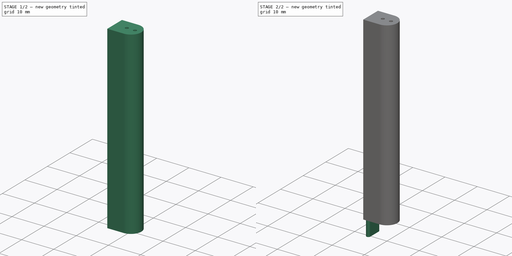
[diagram: build sequence overview — one tinted view per stage of 2, left to right]
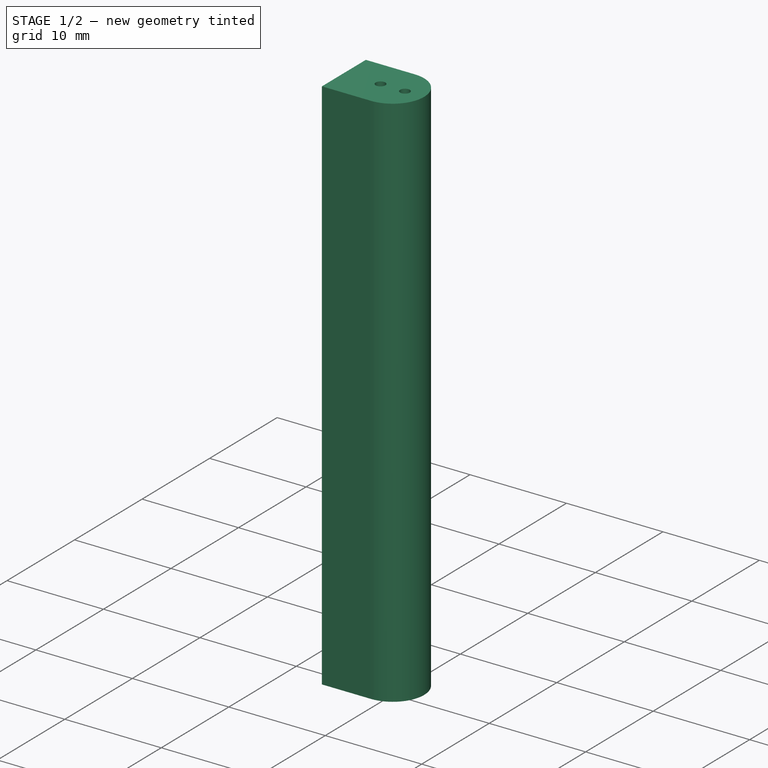
[diagram: stage 1 of 2 — iso view after this stage's code; geometry added in this stage tinted green]
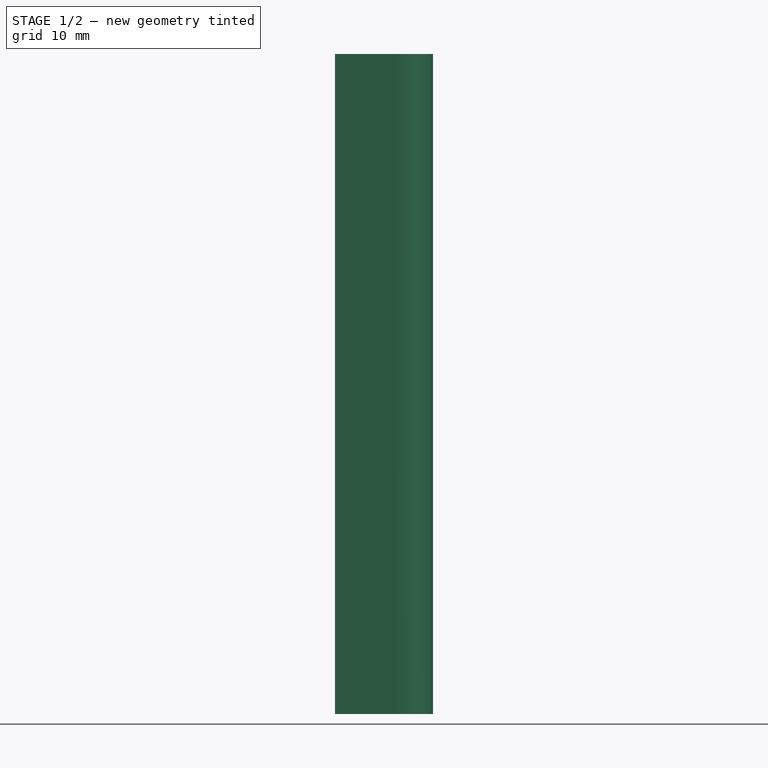
[diagram: stage 1 of 2 — front view after this stage's code; geometry added in this stage tinted green]
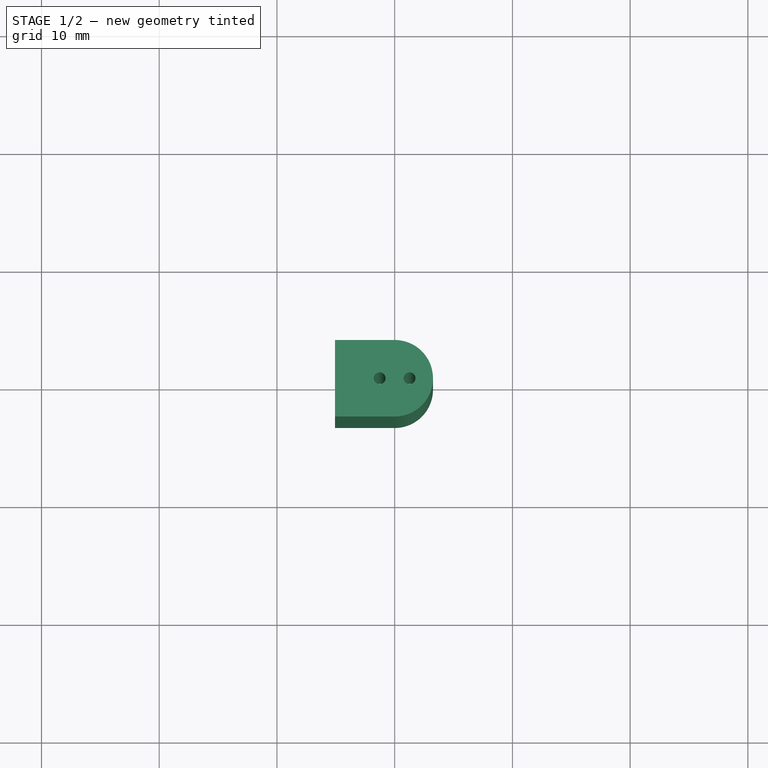
[diagram: stage 1 of 2 — top view after this stage's code; geometry added in this stage tinted green]
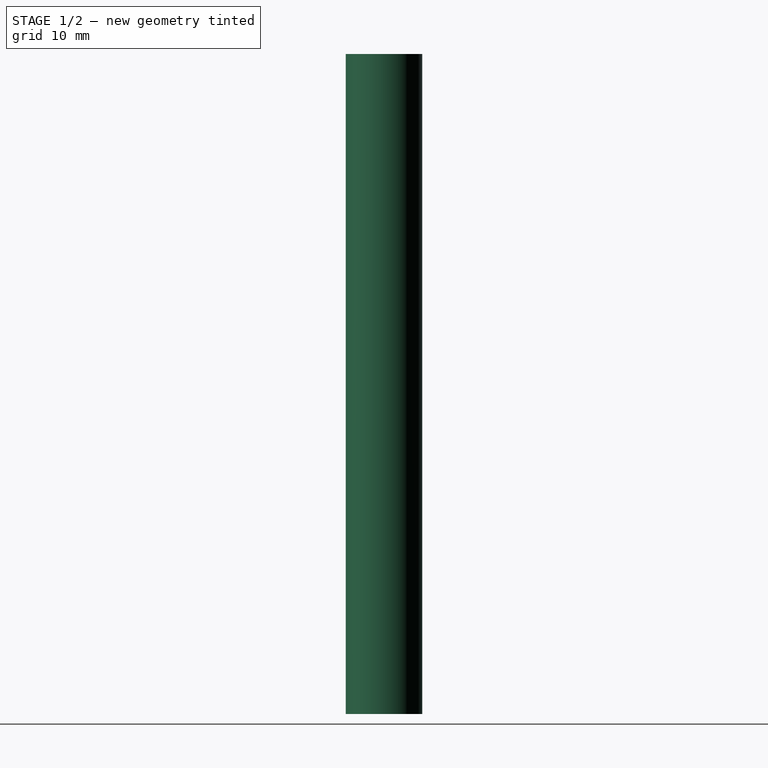
[diagram: stage 1 of 2 — right view after this stage's code; geometry added in this stage tinted green]
FCSTD DOCUMENT  (FreeCAD 0.19R24276 (Git))
Label: spacer-led
License: All rights reserved
LicenseURL: http://en.wikipedia.org/wiki/All_rights_reserved
objects: Sketcher::SketchObject×3, PartDesign::Pad×2, PartDesign::Pocket×1, PartDesign::Body×1
note: 10 computed .brp shape members not serialized (recipe doc carries the construction recipe); baked Part::Feature solids carry a one-line shape summary decoded from their .brp

FEATURE [Sketcher::SketchObject] Sketch  label="base"
  FullyConstrained = false
  MapMode = 5
  Support = -> [XY_Plane]
  sketch-geometry (4):
    g0: LineSegment StartX=-5.067 StartY=3.25 StartZ=0 EndX=-6.89379e-07 EndY=3.25 EndZ=0
    g1: LineSegment StartX=-1.68771e-06 StartY=-3.25 StartZ=0 EndX=-5.067 EndY=-3.25 EndZ=0
    g2: LineSegment StartX=-5.067 StartY=-3.25 StartZ=0 EndX=-5.067 EndY=3.25 EndZ=0
    g3: ArcOfCircle CenterX=0.003284 CenterY=0 CenterZ=0 NormalX=0 NormalY=0 NormalZ=1 AngleXU=0 Radius=3.25 StartAngle=4.71138 EndAngle=7.85499
  constraints (8):
    c: Coincident(g1,g2)
    c: Coincident(g2,g0)
    c: Horizontal(g0)
    c: Horizontal(g1)
    c: Vertical(g2)
    c: DistanceX(g0,g0) = 5.067
    c: Coincident(g3,g0)
    c: Coincident(g3,g1)
FEATURE [PartDesign::Pad] Pad  label="base_pad"
  Direction = (1,1,1)
  Length = 56.05
  Length2 = 100
  Profile = -> Sketch
  Type = 0
FEATURE [Sketcher::SketchObject] Sketch001  label="hole"
  FullyConstrained = true
  MapMode = 5
  Placement = pos=(0,0,56.05) rot=(0,0,1;0rad)
  Support = -> [Pad]
  sketch-geometry (2):
    g0: Circle CenterX=-1.27 CenterY=0 CenterZ=0 NormalX=0 NormalY=0 NormalZ=1 AngleXU=0 Radius=0.5
    g1: Circle CenterX=1.27 CenterY=0 CenterZ=0 NormalX=0 NormalY=0 NormalZ=1 AngleXU=0 Radius=0.5
  constraints (6):
    c: PointOnObject(g0,g-1)
    c: PointOnObject(g1,g-1)
    c: Radius(g1) = 0.5
    c: Radius(g0) = 0.5
    c: DistanceX(g-1,g1) = 1.27
    c: DistanceX(g0,g-1) = 1.27
FEATURE [PartDesign::Pocket] Pocket  label="hole_pocket"
  BaseFeature = -> Pad
  Length = 70
  Length2 = 100
  Profile = -> Sketch001
  Type = 0
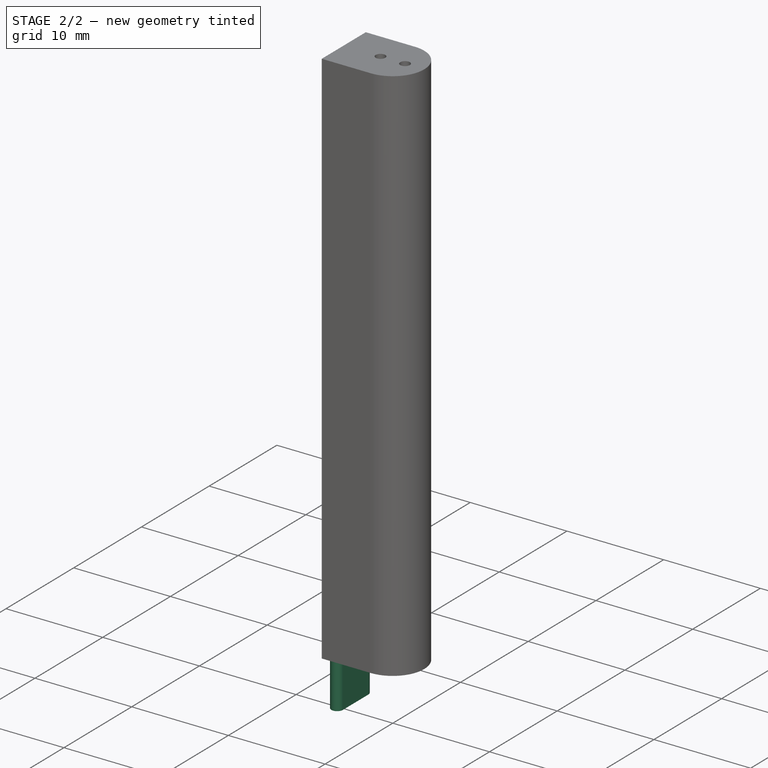
[diagram: stage 2 of 2 — iso view after this stage's code; geometry added in this stage tinted green]
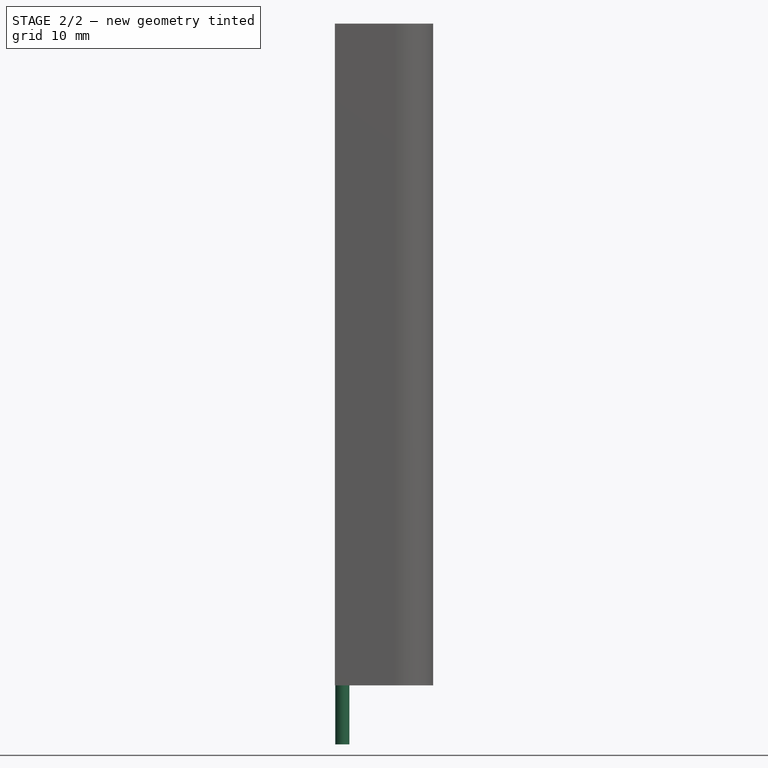
[diagram: stage 2 of 2 — front view after this stage's code; geometry added in this stage tinted green]
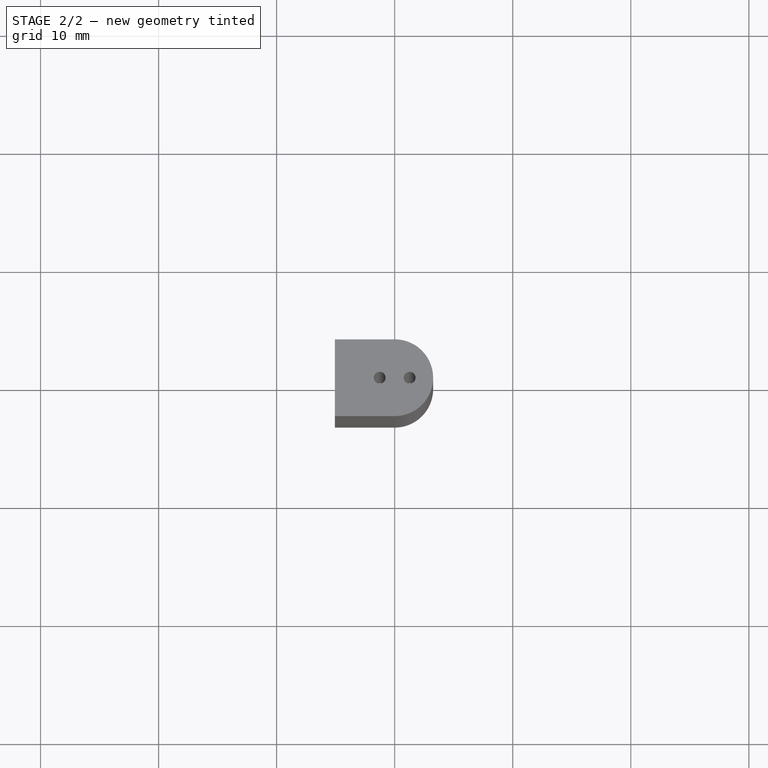
[diagram: stage 2 of 2 — top view after this stage's code; geometry added in this stage tinted green]
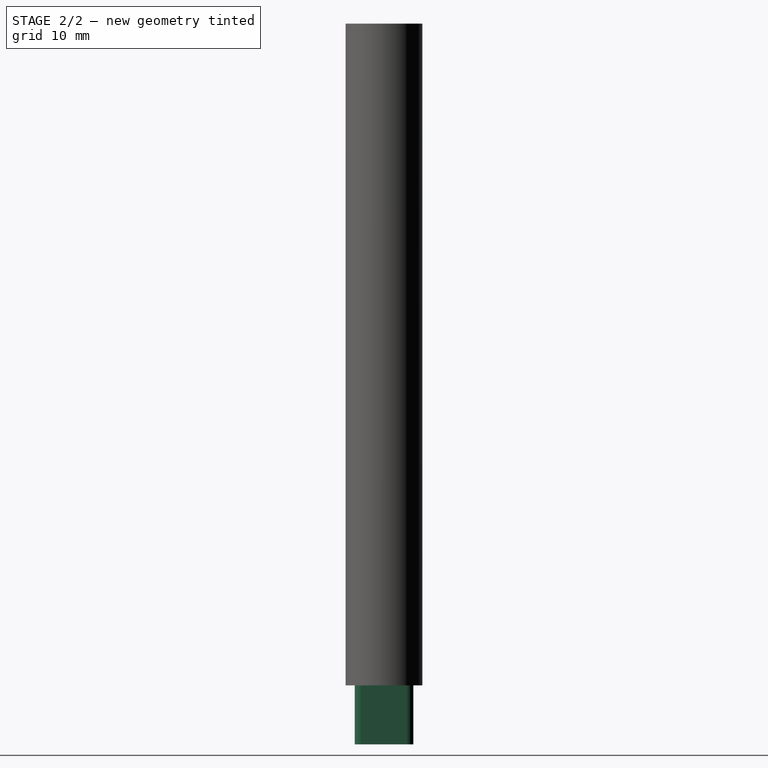
[diagram: stage 2 of 2 — right view after this stage's code; geometry added in this stage tinted green]
FEATURE [Sketcher::SketchObject] Sketch002  label="holder"
  FullyConstrained = false
  MapMode = 5
  Placement = pos=(0,0,0) rot=(1,0,0;3.14159rad)
  Support = -> [Pocket]
  sketch-geometry (4):
    g0: LineSegment StartX=-3.84 StartY=1.905 StartZ=0 EndX=-3.84 EndY=-1.905 EndZ=0
    g1: ArcOfCircle CenterX=-4.43986 CenterY=-1.88565 CenterZ=0 NormalX=0 NormalY=0 NormalZ=1 AngleXU=0 Radius=0.60017 StartAngle=3.1318 EndAngle=6.25094
    g2: ArcOfCircle CenterX=-4.4397 CenterY=1.87796 CenterZ=0 NormalX=0 NormalY=0 NormalZ=1 AngleXU=0 Radius=0.600306 StartAngle=0.0450564 EndAngle=3.13879
    g3: LineSegment StartX=-5.04 StartY=1.87964 StartZ=0 EndX=-5.04 EndY=-1.87977 EndZ=0
  constraints (10):
    c: Vertical(g0)
    c: DistanceY(g-1,g0) = 1.905
    c: DistanceY(g0,g-1) = 1.905
    c: DistanceX(g2,g-1) = 5.04
    c: Coincident(g1,g0)
    c: DistanceX(g2,g0) = 1.2
    c: Coincident(g2,g0)
    c: Coincident(g3,g2)
    c: Coincident(g3,g1)
    c: Vertical(g3)
FEATURE [PartDesign::Pad] Pad001  label="holder_pad"
  BaseFeature = -> Pocket
  Direction = (1,1,1)
  Length = 5
  Length2 = 100
  Profile = -> Sketch002
  Type = 0
FEATURE [PartDesign::Body] Body
  Group = -> [Sketch,Pad,Sketch001,Pocket,Sketch002,Pad001]
  Origin = -> Origin
  Tip = -> Pad001
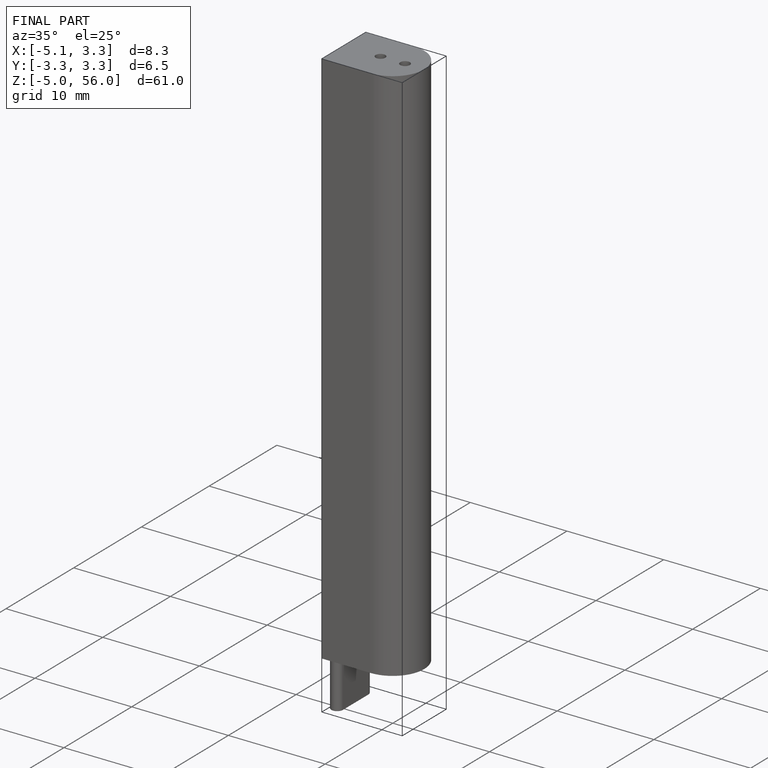
[diagram: finished part — iso view with bounding-box wireframe]
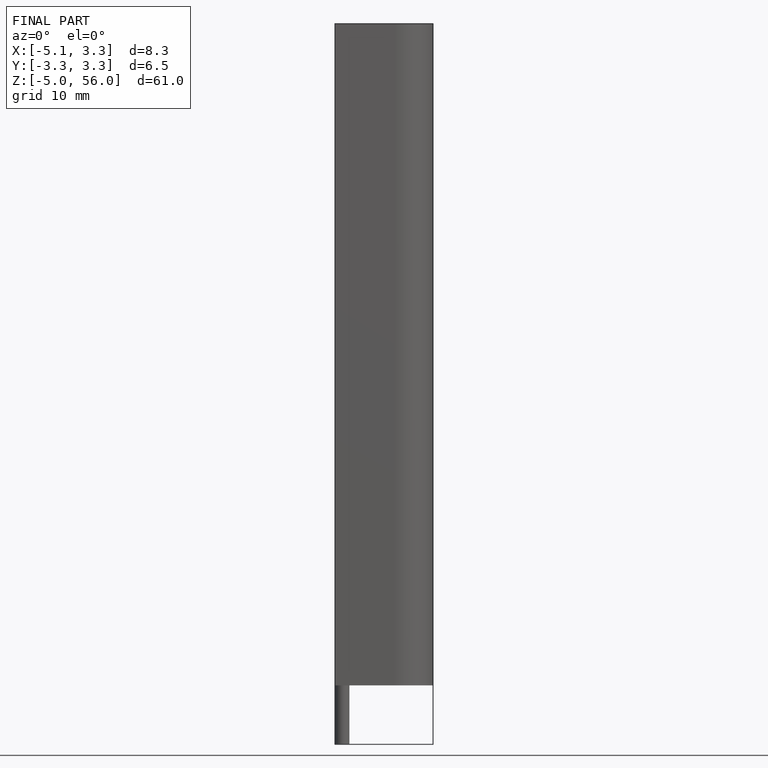
[diagram: finished part — front view with bounding-box wireframe]
